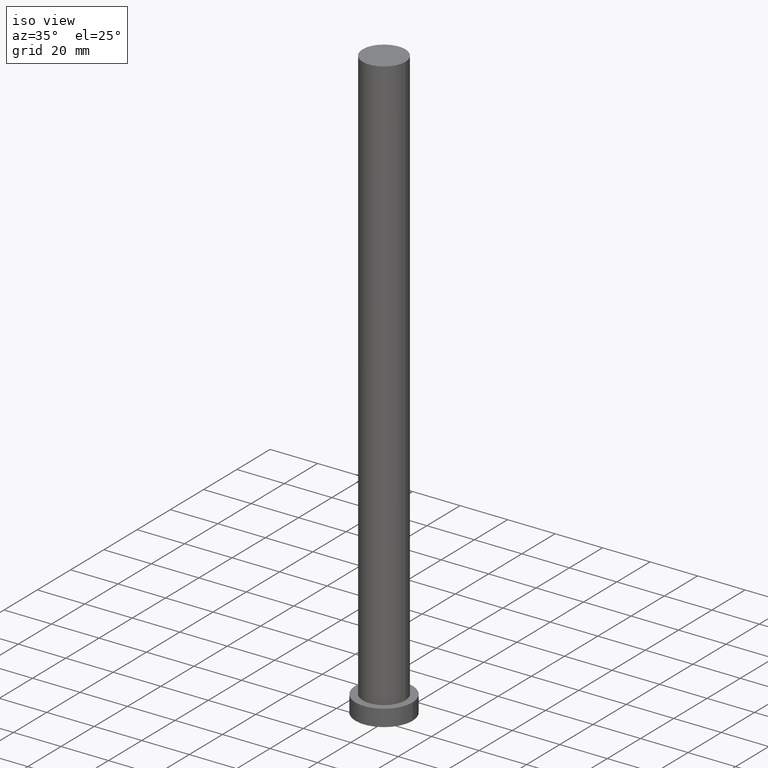
[diagram: clean part render]
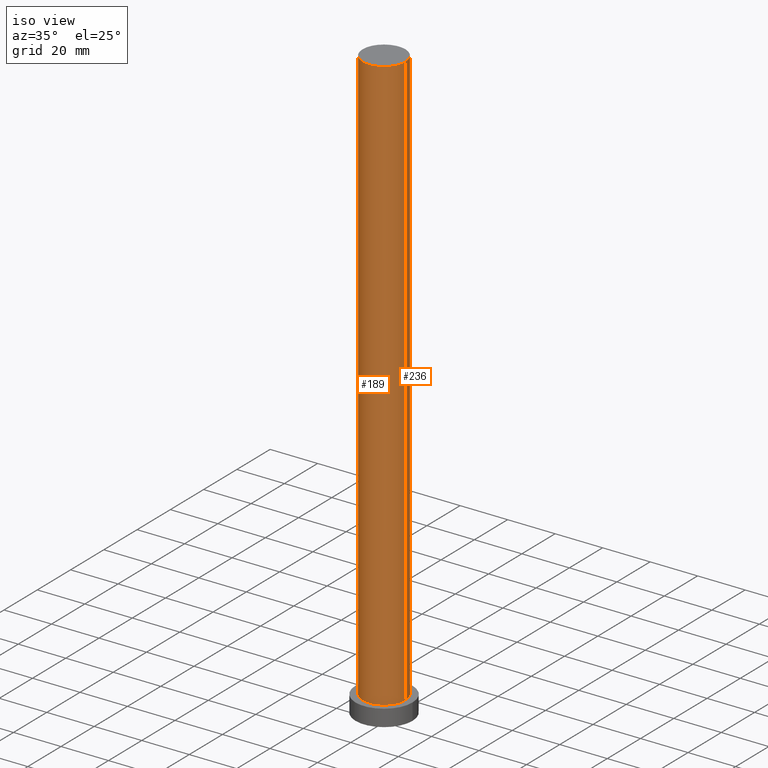
[diagram: same view with one multi-face feature highlighted, each face labeled with its STEP entity id]
A machine part, iso view. The highlighted faces form ONE feature: a constant-radius fillet chain: 2 tangent blend faces with common blend radius 9 mm. The faces share edges in the B-rep.
Their STEP definitions:
[1] entity #236 (Cylinder):
#8 = DIRECTION ( 'NONE',  ( 0.000000000000000000, 0.000000000000000000, 1.000000000000000000 ) ) ;
#9 = DIRECTION ( 'NONE',  ( -1.000000000000000000, 0.000000000000000000, 0.000000000000000000 ) ) ;
#10 = CARTESIAN_POINT ( 'NONE',  ( 0.000000000000000000, 0.000000000000000000, 250.0000000000000000 ) ) ;
#12 = DIRECTION ( 'NONE',  ( 1.000000000000000000, 0.000000000000000000, 0.000000000000000000 ) ) ;
#18 = VERTEX_POINT ( 'NONE', #203 ) ;
#21 = ORIENTED_EDGE ( 'NONE', *, *, #117, .F. ) ;
#23 = DIRECTION ( 'NONE',  ( 0.000000000000000000, 0.000000000000000000, 1.000000000000000000 ) ) ;
#30 = AXIS2_PLACEMENT_3D ( 'NONE', #58, #23, #122 ) ;
#43 = EDGE_CURVE ( 'NONE', #59, #18, #149, .T. ) ;
#45 = FACE_OUTER_BOUND ( 'NONE', #82, .T. ) ;
#55 = VERTEX_POINT ( 'NONE', #204 ) ;
#57 = ORIENTED_EDGE ( 'NONE', *, *, #160, .T. ) ;
#58 = CARTESIAN_POINT ( 'NONE',  ( 0.000000000000000000, 0.000000000000000000, 250.0000000000000000 ) ) ;
#59 = VERTEX_POINT ( 'NONE', #219 ) ;
#62 = ORIENTED_EDGE ( 'NONE', *, *, #43, .F. ) ;
#82 = EDGE_LOOP ( 'NONE', ( #62, #57, #241, #21 ) ) ;
#84 = DIRECTION ( 'NONE',  ( -0.000000000000000000, -0.000000000000000000, -1.000000000000000000 ) ) ;
#85 = VECTOR ( 'NONE', #84, 1000.000000000000000 ) ;
#105 = LINE ( 'NONE', #128, #85 ) ;
#107 = DIRECTION ( 'NONE',  ( -0.000000000000000000, -0.000000000000000000, -1.000000000000000000 ) ) ;
#112 = AXIS2_PLACEMENT_3D ( 'NONE', #250, #8, #12 ) ;
#117 = EDGE_CURVE ( 'NONE', #18, #55, #105, .T. ) ;
#122 = DIRECTION ( 'NONE',  ( 1.000000000000000000, 0.000000000000000000, 0.000000000000000000 ) ) ;
#128 = CARTESIAN_POINT ( 'NONE',  ( -9.000000000000000000, 0.000000000000000000, 250.0000000000000000 ) ) ;
#129 = LINE ( 'NONE', #247, #145 ) ;
#145 = VECTOR ( 'NONE', #196, 1000.000000000000000 ) ;
#149 = CIRCLE ( 'NONE', #30, 9.000000000000000000 ) ;
#160 = EDGE_CURVE ( 'NONE', #59, #233, #129, .T. ) ;
#196 = DIRECTION ( 'NONE',  ( -0.000000000000000000, -0.000000000000000000, -1.000000000000000000 ) ) ;
#203 = CARTESIAN_POINT ( 'NONE',  ( -9.000000000000000000, 0.000000000000000000, 250.0000000000000000 ) ) ;
#204 = CARTESIAN_POINT ( 'NONE',  ( -9.000000000000000000, 0.000000000000000000, 7.000000000000000000 ) ) ;
#210 = CIRCLE ( 'NONE', #112, 9.000000000000000000 ) ;
#219 = CARTESIAN_POINT ( 'NONE',  ( 9.000000000000000000, 1.102182119232617714E-15, 250.0000000000000000 ) ) ;
#224 = CARTESIAN_POINT ( 'NONE',  ( 9.000000000000000000, 1.102182119232617714E-15, 7.000000000000000000 ) ) ;
#227 = AXIS2_PLACEMENT_3D ( 'NONE', #10, #107, #9 ) ;
#233 = VERTEX_POINT ( 'NONE', #224 ) ;
#236 = ADVANCED_FACE ( 'NONE', ( #45 ), #244, .T. ) ;
#241 = ORIENTED_EDGE ( 'NONE', *, *, #253, .T. ) ;
#244 = CYLINDRICAL_SURFACE ( 'NONE', #227, 9.000000000000000000 ) ;
#247 = CARTESIAN_POINT ( 'NONE',  ( 9.000000000000000000, 1.102182119232617714E-15, 250.0000000000000000 ) ) ;
#250 = CARTESIAN_POINT ( 'NONE',  ( 0.000000000000000000, 0.000000000000000000, 7.000000000000000000 ) ) ;
#253 = EDGE_CURVE ( 'NONE', #233, #55, #210, .T. ) ;
[2] entity #189 (Cylinder):
#4 = ORIENTED_EDGE ( 'NONE', *, *, #71, .T. ) ;
#5 = DIRECTION ( 'NONE',  ( 0.000000000000000000, 0.000000000000000000, 1.000000000000000000 ) ) ;
#7 = CYLINDRICAL_SURFACE ( 'NONE', #140, 9.000000000000000000 ) ;
#18 = VERTEX_POINT ( 'NONE', #203 ) ;
#27 = CARTESIAN_POINT ( 'NONE',  ( 0.000000000000000000, 0.000000000000000000, 250.0000000000000000 ) ) ;
#42 = CARTESIAN_POINT ( 'NONE',  ( 0.000000000000000000, 0.000000000000000000, 7.000000000000000000 ) ) ;
#55 = VERTEX_POINT ( 'NONE', #204 ) ;
#59 = VERTEX_POINT ( 'NONE', #219 ) ;
#61 = AXIS2_PLACEMENT_3D ( 'NONE', #42, #5, #187 ) ;
#64 = DIRECTION ( 'NONE',  ( 1.000000000000000000, 0.000000000000000000, 0.000000000000000000 ) ) ;
#71 = EDGE_CURVE ( 'NONE', #55, #233, #185, .T. ) ;
#76 = CIRCLE ( 'NONE', #138, 9.000000000000000000 ) ;
#77 = EDGE_LOOP ( 'NONE', ( #168, #99, #118, #4 ) ) ;
#83 = DIRECTION ( 'NONE',  ( -0.000000000000000000, -0.000000000000000000, -1.000000000000000000 ) ) ;
#84 = DIRECTION ( 'NONE',  ( -0.000000000000000000, -0.000000000000000000, -1.000000000000000000 ) ) ;
#85 = VECTOR ( 'NONE', #84, 1000.000000000000000 ) ;
#99 = ORIENTED_EDGE ( 'NONE', *, *, #120, .F. ) ;
#105 = LINE ( 'NONE', #128, #85 ) ;
#117 = EDGE_CURVE ( 'NONE', #18, #55, #105, .T. ) ;
#118 = ORIENTED_EDGE ( 'NONE', *, *, #117, .T. ) ;
#120 = EDGE_CURVE ( 'NONE', #18, #59, #76, .T. ) ;
#128 = CARTESIAN_POINT ( 'NONE',  ( -9.000000000000000000, 0.000000000000000000, 250.0000000000000000 ) ) ;
#129 = LINE ( 'NONE', #247, #145 ) ;
#138 = AXIS2_PLACEMENT_3D ( 'NONE', #173, #211, #64 ) ;
#140 = AXIS2_PLACEMENT_3D ( 'NONE', #27, #83, #194 ) ;
#145 = VECTOR ( 'NONE', #196, 1000.000000000000000 ) ;
#160 = EDGE_CURVE ( 'NONE', #59, #233, #129, .T. ) ;
#168 = ORIENTED_EDGE ( 'NONE', *, *, #160, .F. ) ;
#173 = CARTESIAN_POINT ( 'NONE',  ( 0.000000000000000000, 0.000000000000000000, 250.0000000000000000 ) ) ;
#185 = CIRCLE ( 'NONE', #61, 9.000000000000000000 ) ;
#187 = DIRECTION ( 'NONE',  ( 1.000000000000000000, 0.000000000000000000, 0.000000000000000000 ) ) ;
#189 = ADVANCED_FACE ( 'NONE', ( #192 ), #7, .T. ) ;
#192 = FACE_OUTER_BOUND ( 'NONE', #77, .T. ) ;
#194 = DIRECTION ( 'NONE',  ( -1.000000000000000000, 0.000000000000000000, 0.000000000000000000 ) ) ;
#196 = DIRECTION ( 'NONE',  ( -0.000000000000000000, -0.000000000000000000, -1.000000000000000000 ) ) ;
#203 = CARTESIAN_POINT ( 'NONE',  ( -9.000000000000000000, 0.000000000000000000, 250.0000000000000000 ) ) ;
#204 = CARTESIAN_POINT ( 'NONE',  ( -9.000000000000000000, 0.000000000000000000, 7.000000000000000000 ) ) ;
#211 = DIRECTION ( 'NONE',  ( 0.000000000000000000, 0.000000000000000000, 1.000000000000000000 ) ) ;
#219 = CARTESIAN_POINT ( 'NONE',  ( 9.000000000000000000, 1.102182119232617714E-15, 250.0000000000000000 ) ) ;
#224 = CARTESIAN_POINT ( 'NONE',  ( 9.000000000000000000, 1.102182119232617714E-15, 7.000000000000000000 ) ) ;
#233 = VERTEX_POINT ( 'NONE', #224 ) ;
#247 = CARTESIAN_POINT ( 'NONE',  ( 9.000000000000000000, 1.102182119232617714E-15, 250.0000000000000000 ) ) ;